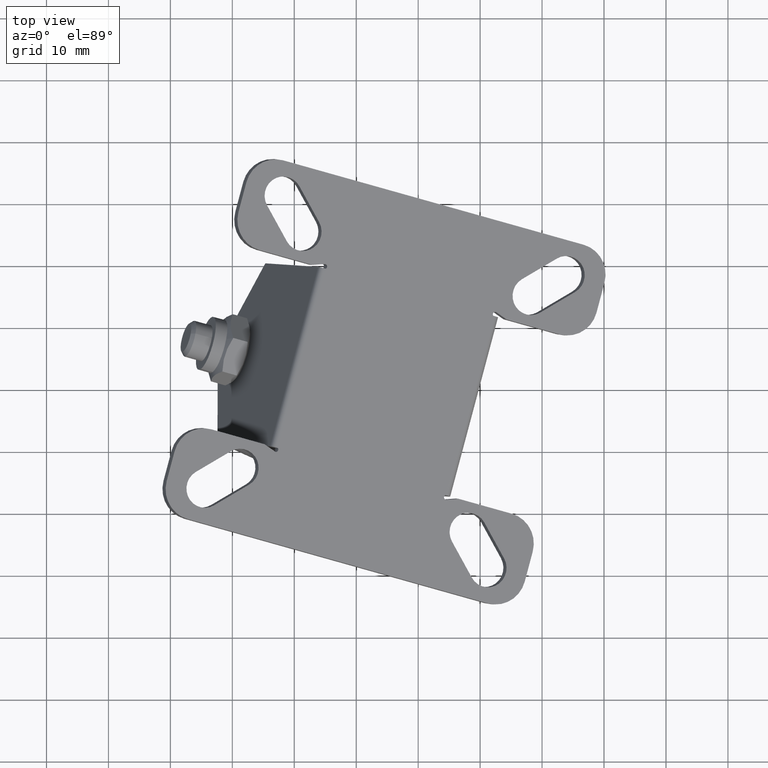
[diagram: clean part render]
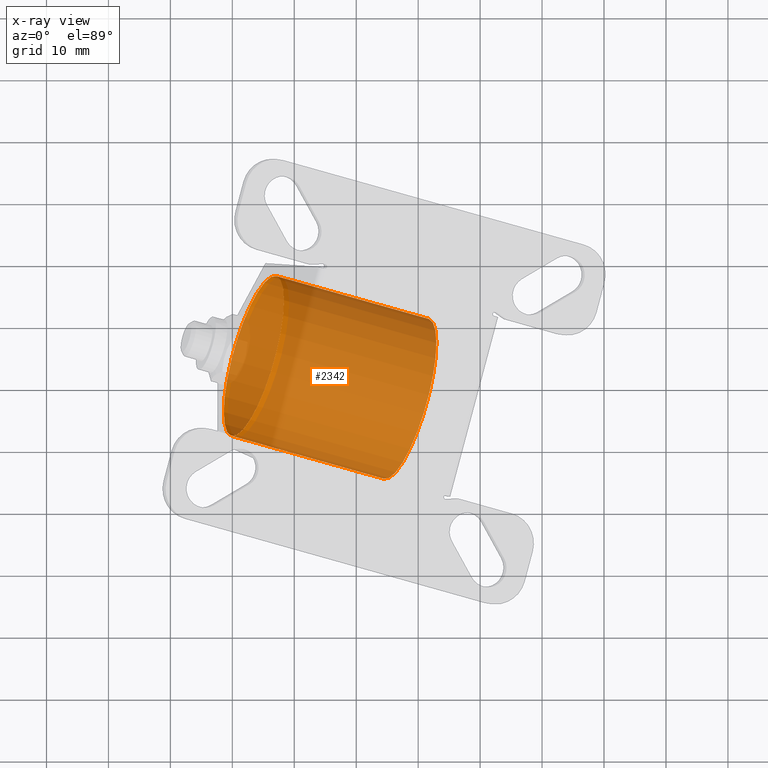
[diagram: x-ray — body ghosted, one internal face saturated and labeled with its STEP entity id]
A machine part, top view, then the same camera in x-ray: the body is ghosted and one INTERNAL B-rep face — a face not visible from any outside direction — is saturated and labeled: STEP entity #2342.
In plain terms, the highlighted cylindrical surface (bore or boss wall) has radius 13.4 mm, axis along (-0.9323, 0.2575, 0.2541).
Its self-contained STEP definition (entity closure, byte-faithful):
#545=FACE_BOUND('',#768,.T.);
#614=FACE_OUTER_BOUND('',#767,.T.);
#767=EDGE_LOOP('',(#1662));
#768=EDGE_LOOP('',(#1663));
#955=CIRCLE('',#2506,13.4);
#958=CIRCLE('',#2510,13.4);
#1073=VERTEX_POINT('',#3489);
#1076=VERTEX_POINT('',#3526);
#1307=EDGE_CURVE('',#1073,#1073,#955,.T.);
#1311=EDGE_CURVE('',#1076,#1076,#958,.T.);
#1662=ORIENTED_EDGE('',*,*,#1311,.T.);
#1663=ORIENTED_EDGE('',*,*,#1307,.F.);
#2290=CYLINDRICAL_SURFACE('',#2511,13.4);
#2342=ADVANCED_FACE('',(#614,#545),#2290,.F.);
#2506=AXIS2_PLACEMENT_3D('',#3490,#2811,#2812);
#2510=AXIS2_PLACEMENT_3D('',#3527,#2819,#2820);
#2511=AXIS2_PLACEMENT_3D('',#3528,#2821,#2822);
#2811=DIRECTION('center_axis',(1.,0.,0.));
#2812=DIRECTION('ref_axis',(0.,0.,-1.));
#2819=DIRECTION('center_axis',(1.,0.,0.));
#2820=DIRECTION('ref_axis',(0.,0.,-1.));
#2821=DIRECTION('center_axis',(1.,0.,0.));
#2822=DIRECTION('ref_axis',(0.,1.,0.));
#3489=CARTESIAN_POINT('',(-13.2,13.4,0.));
#3490=CARTESIAN_POINT('Origin',(-13.2,0.,0.));
#3526=CARTESIAN_POINT('',(13.2,13.4,0.));
#3527=CARTESIAN_POINT('Origin',(13.2,0.,0.));
#3528=CARTESIAN_POINT('Origin',(-4.44089209850063E-15,0.,0.));